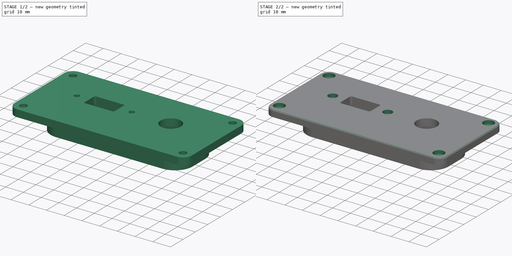
[diagram: build sequence overview — one tinted view per stage of 2, left to right]
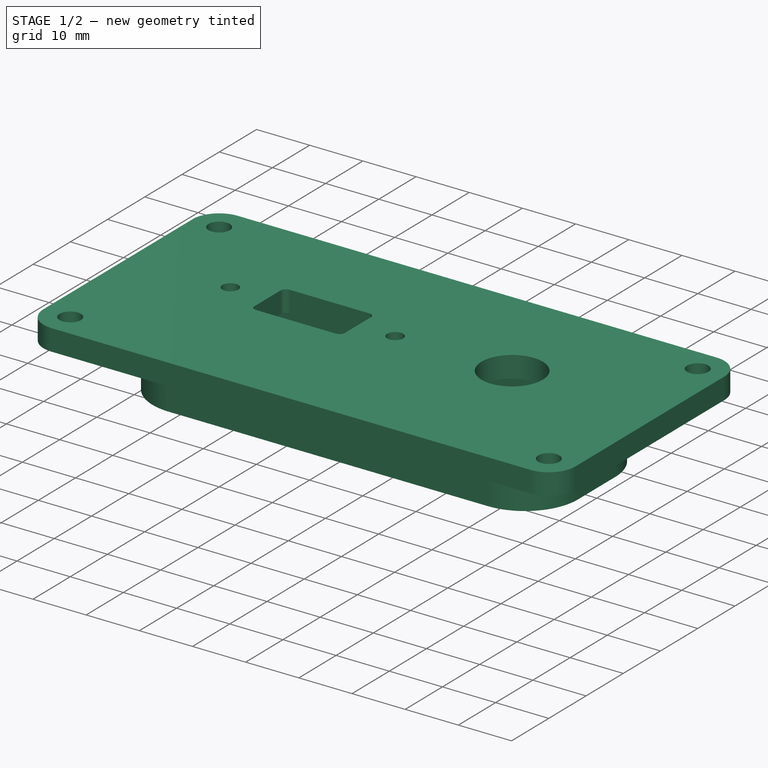
[diagram: stage 1 of 2 — iso view after this stage's code; geometry added in this stage tinted green]
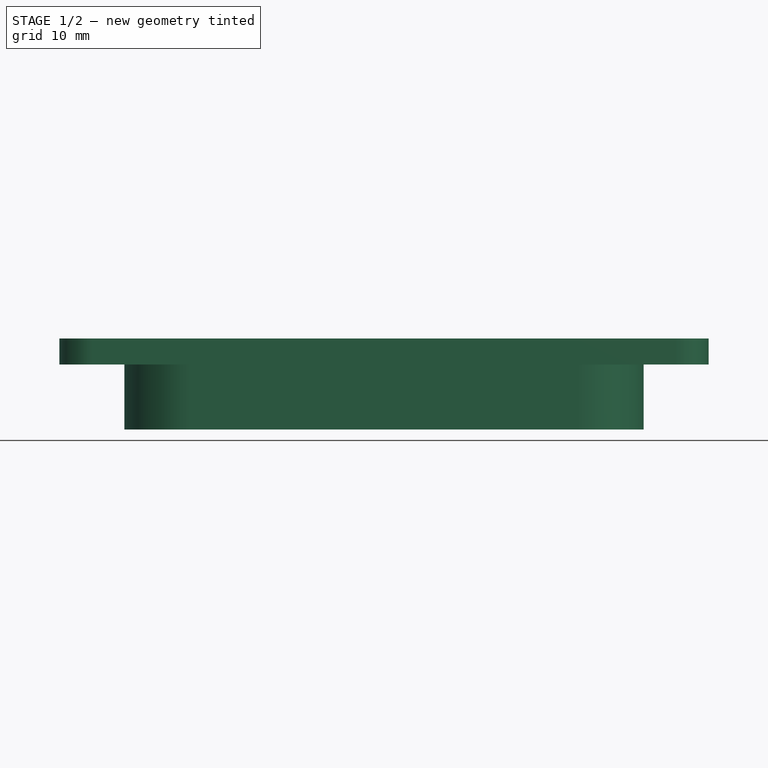
[diagram: stage 1 of 2 — front view after this stage's code; geometry added in this stage tinted green]
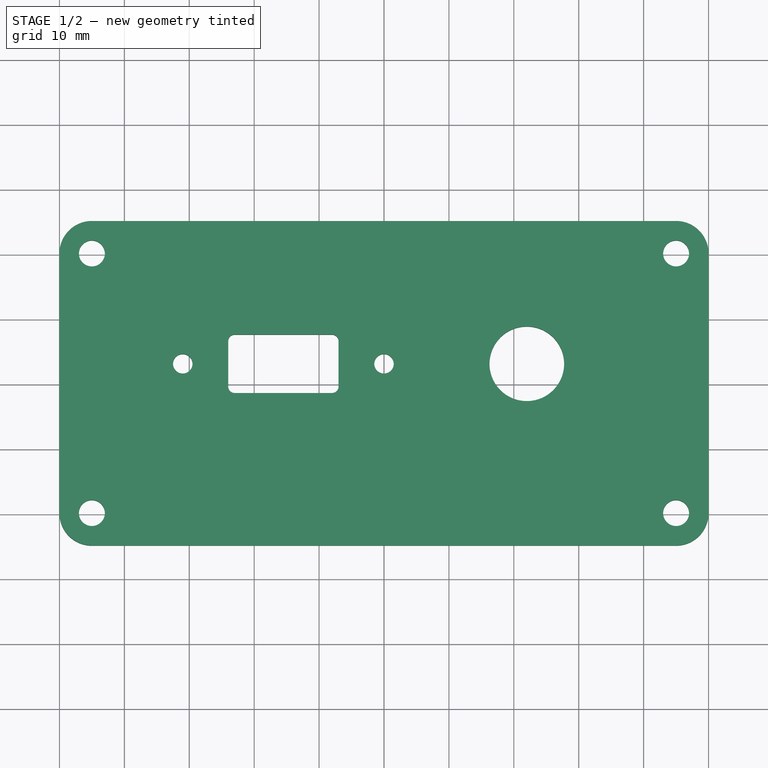
[diagram: stage 1 of 2 — top view after this stage's code; geometry added in this stage tinted green]
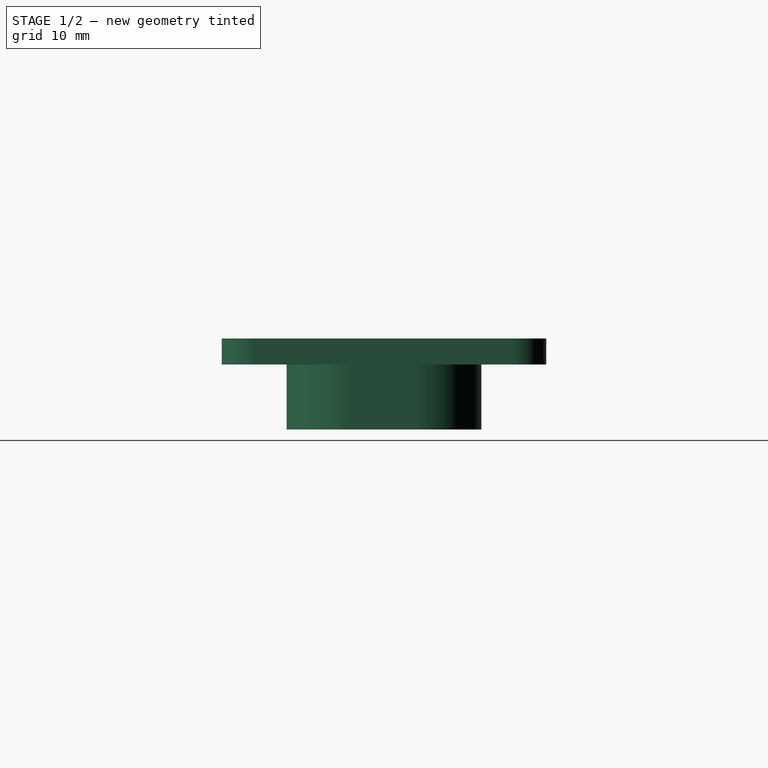
[diagram: stage 1 of 2 — right view after this stage's code; geometry added in this stage tinted green]
FCSTD DOCUMENT  (FreeCAD 0.21R33694 (Git))
Label: plaque-fixation-usb-pedalier-jack-pedale-expression
License: Creative Commons Attribution 3.0
LicenseURL: http://en.wikipedia.org/wiki/Public_domain
objects: Sketcher::SketchObject×3, PartDesign::Pad×2, PartDesign::Pocket×1, PartDesign::Fillet×1, PartDesign::Body×1
note: 12 computed .brp shape members not serialized (recipe doc carries the construction recipe); baked Part::Feature solids carry a one-line shape summary decoded from their .brp

FEATURE [Sketcher::SketchObject] Sketch  label="plaque-et-connecteurs"
  FullyConstrained = true
  MapMode = 5
  Support = -> [XY_Plane]
  sketch-geometry (29):
    g0: ArcOfCircle CenterX=-45 CenterY=20 CenterZ=0 NormalX=0 NormalY=0 NormalZ=1 AngleXU=0 Radius=5 StartAngle=1.5708 EndAngle=3.14159
    g1: LineSegment StartX=-45 StartY=25 StartZ=0 EndX=45 EndY=25 EndZ=0
    g2: ArcOfCircle CenterX=45 CenterY=20 CenterZ=0 NormalX=0 NormalY=0 NormalZ=1 AngleXU=0 Radius=5 StartAngle=0 EndAngle=1.5708
    g3: LineSegment StartX=50 StartY=20 StartZ=0 EndX=50 EndY=-20 EndZ=0
    g4: ArcOfCircle CenterX=45 CenterY=-20 CenterZ=0 NormalX=0 NormalY=0 NormalZ=1 AngleXU=0 Radius=5 StartAngle=4.71239 EndAngle=6.28319
    g5: LineSegment StartX=45 StartY=-25 StartZ=0 EndX=-45 EndY=-25 EndZ=0
    g6: ArcOfCircle CenterX=-45 CenterY=-20 CenterZ=0 NormalX=0 NormalY=0 NormalZ=1 AngleXU=0 Radius=5 StartAngle=3.14159 EndAngle=4.71239
    g7: LineSegment StartX=-50 StartY=-20 StartZ=0 EndX=-50 EndY=20 EndZ=0
    g8: GeomPoint X=-50 Y=25 Z=0
    g9: GeomPoint X=50 Y=-25 Z=0
    g10: Circle CenterX=-45 CenterY=20 CenterZ=0 NormalX=0 NormalY=0 NormalZ=1 AngleXU=0 Radius=2
    g11: Circle CenterX=45 CenterY=20 CenterZ=0 NormalX=0 NormalY=0 NormalZ=1 AngleXU=0 Radius=2
    g12: Circle CenterX=-45 CenterY=-20 CenterZ=0 NormalX=0 NormalY=0 NormalZ=1 AngleXU=0 Radius=2
    g13: Circle CenterX=45 CenterY=-20 CenterZ=0 NormalX=0 NormalY=0 NormalZ=1 AngleXU=0 Radius=2
    g14: ArcOfCircle CenterX=-23 CenterY=6.5 CenterZ=0 NormalX=0 NormalY=0 NormalZ=1 AngleXU=0 Radius=1 StartAngle=1.5708 EndAngle=3.14159
    g15: LineSegment StartX=-23 StartY=7.5 StartZ=0 EndX=-8 EndY=7.5 EndZ=0
    g16: ArcOfCircle CenterX=-8 CenterY=6.5 CenterZ=0 NormalX=0 NormalY=0 NormalZ=1 AngleXU=0 Radius=1 StartAngle=0 EndAngle=1.5708
    g17: LineSegment StartX=-7 StartY=6.5 StartZ=0 EndX=-7 EndY=-0.5 EndZ=0
    g18: ArcOfCircle CenterX=-8 CenterY=-0.5 CenterZ=0 NormalX=0 NormalY=0 NormalZ=1 AngleXU=0 Radius=1 StartAngle=4.71239 EndAngle=6.28319
    g19: LineSegment StartX=-8 StartY=-1.5 StartZ=0 EndX=-23 EndY=-1.5 EndZ=0
    g20: ArcOfCircle CenterX=-23 CenterY=-0.5 CenterZ=0 NormalX=0 NormalY=0 NormalZ=1 AngleXU=0 Radius=1 StartAngle=3.14159 EndAngle=4.71239
    g21: LineSegment StartX=-24 StartY=-0.5 StartZ=0 EndX=-24 EndY=6.5 EndZ=0
    g22: Circle CenterX=-31 CenterY=3 CenterZ=0 NormalX=0 NormalY=0 NormalZ=1 AngleXU=0 Radius=1.5
    g23: Circle CenterX=0 CenterY=3 CenterZ=0 NormalX=0 NormalY=0 NormalZ=1 AngleXU=0 Radius=1.5
    g24: Circle CenterX=22 CenterY=3 CenterZ=0 NormalX=0 NormalY=0 NormalZ=1 AngleXU=0 Radius=5.75
    g25: LineSegment StartX=-31 StartY=3 StartZ=0 EndX=0 EndY=3 EndZ=0
    g26: LineSegment StartX=-8 StartY=6.5 StartZ=0 EndX=-23 EndY=-0.5 EndZ=0
    g27: LineSegment StartX=-23 StartY=6.5 StartZ=0 EndX=-8 EndY=-0.5 EndZ=0
    g28: GeomPoint X=-15.5 Y=3 Z=0
  constraints (65):
    c: Tangent(g0,g1) = 1.5708
    c: Tangent(g1,g2) = 1.5708
    c: Tangent(g2,g3) = 1.5708
    c: Tangent(g3,g4) = 1.5708
    c: Tangent(g4,g5) = 1.5708
    c: Tangent(g5,g6) = 1.5708
    c: Tangent(g6,g7) = 1.5708
    c: Tangent(g7,g0) = 1.5708
    c: Horizontal(g5)
    c: Vertical(g3)
    c: Vertical(g7)
    c: Equal(g0,g2)
    c: Equal(g4,g6)
    c: PointOnObject(g8,g1)
    c: PointOnObject(g8,g7)
    c: PointOnObject(g9,g3)
    c: PointOnObject(g9,g5)
    c: Radius(g0) = 5
    c: Symmetric(g1,g4,g-1)
    c: DistanceY(g1) = 25
    c: Symmetric(g1,g0,g-2)
    c: DistanceX(g3) = 50
    c: Coincident(g10,g0)
    c: Coincident(g11,g2)
    c: Coincident(g13,g4)
    c: Coincident(g12,g6)
    c: Diameter(g10) = 4
    c: Equal(g11,g13)
    c: Equal(g13,g12)
    c: Equal(g12,g10)
    c: Tangent(g14,g15) = 1.5708
    c: Tangent(g15,g16) = 1.5708
    c: Tangent(g16,g17) = 1.5708
    c: Tangent(g17,g18) = 1.5708
    c: Tangent(g18,g19) = 1.5708
    c: Tangent(g19,g20) = 1.5708
    c: Tangent(g20,g21) = 1.5708
    c: Tangent(g21,g14) = 1.5708
    c: Horizontal(g15)
    c: Horizontal(g19)
    c: Vertical(g17)
    c: Vertical(g21)
    c: DistanceX(g20,g17) = 17
    c: Diameter(g22) = 3
    c: Equal(g23,g22)
    c: Diameter(g24) = 11.5
    c: DistanceX(g24) = 22
    c: DistanceY(g24) = 3
    c: DistanceY(g19,g14) = 9
    c: Radius(g14) = 1
    c: Equal(g16,g18)
    c: Equal(g18,g20)
    c: Equal(g20,g14)
    c: Horizontal(g23,g24)
    c: PointOnObject(g23,g-2)
    c: Coincident(g25,g22)
    c: Coincident(g25,g23)
    c: Symmetric(g15,g18,g25)
    c: DistanceX(g22,g23) = 31
    c: Coincident(g26,g16)
    c: Coincident(g26,g20)
    c: Coincident(g27,g14)
    c: Coincident(g27,g18)
    c: PointOnObject(g28,g27)
    c: Symmetric(g22,g23,g28)
FEATURE [PartDesign::Pad] Pad  label="plaque-et-connecteurs001"
  Direction = (0,0,1)
  Length = 4
  Length2 = 10
  Profile = -> Sketch
  ReferenceAxis = -> Sketch [N_Axis]
  Reversed = true
  Type = 0
FEATURE [Sketcher::SketchObject] Sketch001  label="raidisseur-et-maintien"
  FullyConstrained = true
  MapMode = 5
  Placement = pos=(0,0,-4) rot=(1,0,0;3.14159rad)
  Support = -> [Pad]
  sketch-geometry (20):
    g0: ArcOfCircle CenterX=-30 CenterY=5 CenterZ=0 NormalX=0 NormalY=0 NormalZ=1 AngleXU=0 Radius=10 StartAngle=1.5708 EndAngle=3.14159
    g1: LineSegment StartX=-30 StartY=15 StartZ=0 EndX=30 EndY=15 EndZ=0
    g2: ArcOfCircle CenterX=30 CenterY=5 CenterZ=0 NormalX=0 NormalY=0 NormalZ=1 AngleXU=0 Radius=10 StartAngle=1e-16 EndAngle=1.5708
    g3: LineSegment StartX=40 StartY=5 StartZ=0 EndX=40 EndY=-5 EndZ=0
    g4: ArcOfCircle CenterX=30 CenterY=-5 CenterZ=0 NormalX=0 NormalY=0 NormalZ=1 AngleXU=0 Radius=10 StartAngle=4.71239 EndAngle=6.28319
    g5: LineSegment StartX=30 StartY=-15 StartZ=0 EndX=-30 EndY=-15 EndZ=0
    g6: ArcOfCircle CenterX=-30 CenterY=-5 CenterZ=0 NormalX=0 NormalY=0 NormalZ=1 AngleXU=0 Radius=10 StartAngle=3.14159 EndAngle=4.71239
    g7: LineSegment StartX=-40 StartY=-5 StartZ=0 EndX=-40 EndY=5 EndZ=0
    g8: GeomPoint X=-40 Y=15 Z=0
    g9: GeomPoint X=40 Y=-15 Z=0
    g10: ArcOfCircle CenterX=-30 CenterY=5 CenterZ=0 NormalX=0 NormalY=0 NormalZ=1 AngleXU=0 Radius=8 StartAngle=1.5708 EndAngle=3.14159
    g11: LineSegment StartX=-30 StartY=13 StartZ=0 EndX=30 EndY=13 EndZ=0
    g12: ArcOfCircle CenterX=30 CenterY=5 CenterZ=0 NormalX=0 NormalY=0 NormalZ=1 AngleXU=0 Radius=8 StartAngle=1e-16 EndAngle=1.5708
    g13: LineSegment StartX=38 StartY=5 StartZ=0 EndX=38 EndY=-5 EndZ=0
    g14: ArcOfCircle CenterX=30 CenterY=-5 CenterZ=0 NormalX=0 NormalY=0 NormalZ=1 AngleXU=0 Radius=8 StartAngle=4.71239 EndAngle=6.28319
    g15: LineSegment StartX=30 StartY=-13 StartZ=0 EndX=-30 EndY=-13 EndZ=0
    g16: ArcOfCircle CenterX=-30 CenterY=-5 CenterZ=0 NormalX=0 NormalY=0 NormalZ=1 AngleXU=0 Radius=8 StartAngle=3.14159 EndAngle=4.71239
    g17: LineSegment StartX=-38 StartY=-5 StartZ=0 EndX=-38 EndY=5 EndZ=0
    g18: GeomPoint X=-38 Y=13 Z=0
    g19: GeomPoint X=38 Y=-13 Z=0
  constraints (44):
    c: Tangent(g0,g1) = 1.5708
    c: Tangent(g1,g2) = 1.5708
    c: Tangent(g2,g3) = 1.5708
    c: Tangent(g3,g4) = 1.5708
    c: Tangent(g4,g5) = 1.5708
    c: Tangent(g5,g6) = 1.5708
    c: Tangent(g6,g7) = 1.5708
    c: Tangent(g7,g0) = 1.5708
    c: Horizontal(g5)
    c: Vertical(g3)
    c: Vertical(g7)
    c: Equal(g0,g2)
    c: Equal(g2,g4)
    c: PointOnObject(g8,g1)
    c: PointOnObject(g8,g7)
    c: PointOnObject(g9,g3)
    c: PointOnObject(g9,g5)
    c: DistanceX(g0,g2) = 80
    c: DistanceY(g4,g1) = 30
    c: Radius(g0) = 10
    c: Symmetric(g0,g1,g-2)
    c: Symmetric(g0,g5,g-1)
    c: Tangent(g10,g11) = 1.5708
    c: Tangent(g11,g12) = 1.5708
    c: Tangent(g12,g13) = 1.5708
    c: Tangent(g13,g14) = 1.5708
    c: Tangent(g14,g15) = 1.5708
    c: Tangent(g15,g16) = 1.5708
    c: Tangent(g16,g17) = 1.5708
    c: Tangent(g17,g10) = 1.5708
    c: Horizontal(g15)
    c: Vertical(g13)
    c: Vertical(g17)
    c: Equal(g10,g12)
    c: Equal(g14,g16)
    c: PointOnObject(g18,g11)
    c: PointOnObject(g18,g17)
    c: PointOnObject(g19,g13)
    c: PointOnObject(g19,g15)
    c: DistanceX(g0,g10) = 2
    c: Symmetric(g10,g11,g-2)
    c: DistanceY(g4,g14) = 2
    c: Symmetric(g14,g11,g-1)
    c: Radius(g12) = 8
FEATURE [PartDesign::Pad] Pad001  label="raidisseur-et-maintien001"
  BaseFeature = -> Pad
  Direction = (0,0,-1)
  Length = 10
  Length2 = 10
  Profile = -> Sketch001
  ReferenceAxis = -> Sketch001 [N_Axis]
  Type = 0
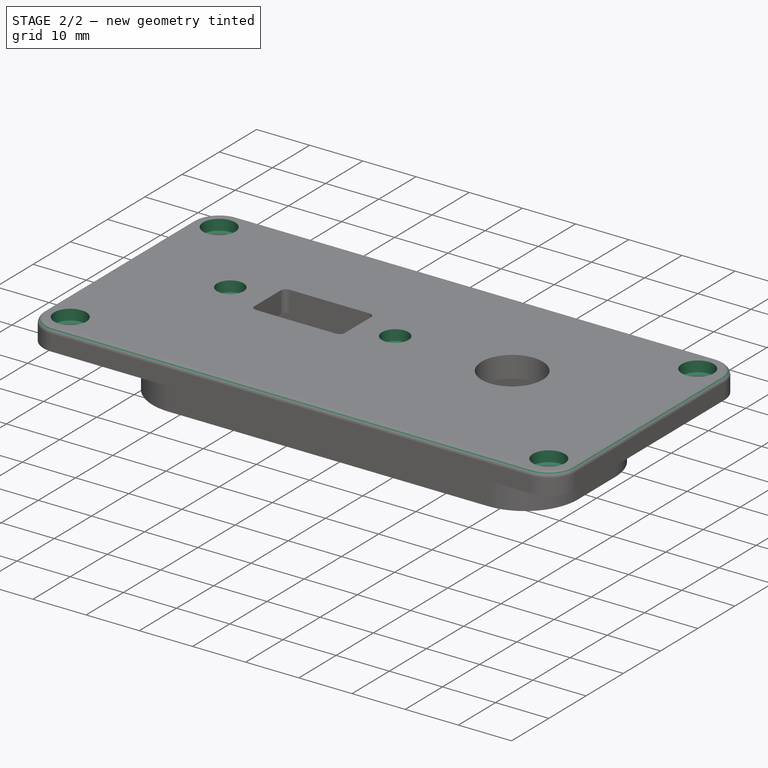
[diagram: stage 2 of 2 — iso view after this stage's code; geometry added in this stage tinted green]
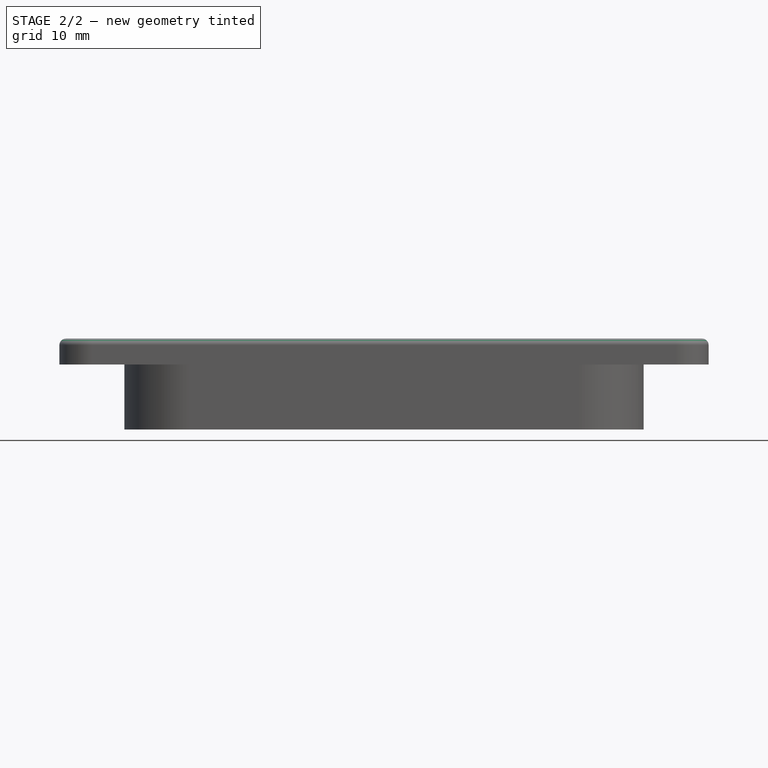
[diagram: stage 2 of 2 — front view after this stage's code; geometry added in this stage tinted green]
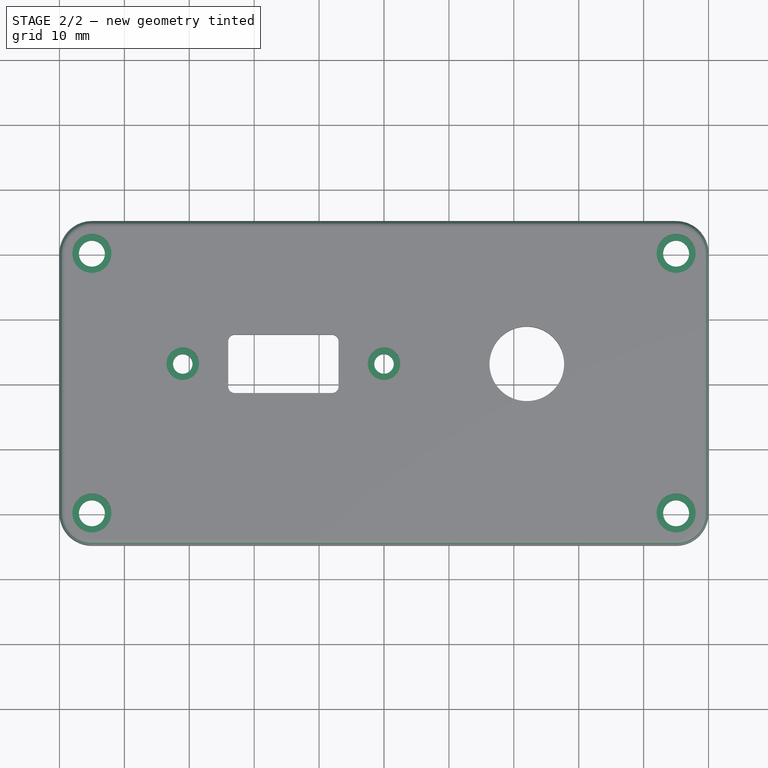
[diagram: stage 2 of 2 — top view after this stage's code; geometry added in this stage tinted green]
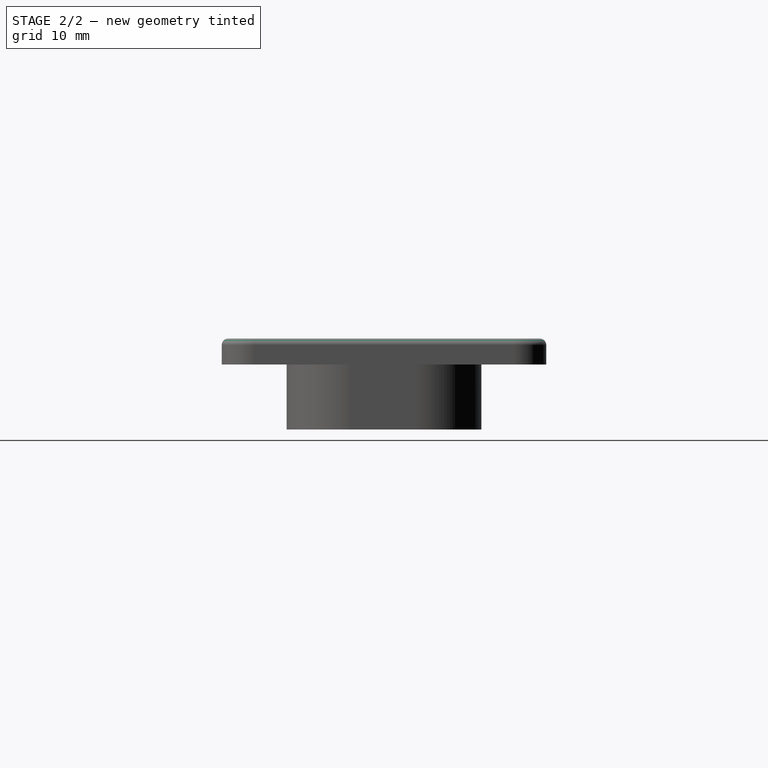
[diagram: stage 2 of 2 — right view after this stage's code; geometry added in this stage tinted green]
FEATURE [Sketcher::SketchObject] Sketch002  label="appuis-vis"
  ExternalGeometry = -> [Pad001]
  FullyConstrained = true
  MapMode = 5
  Support = -> [Pad001]
  sketch-geometry (6):
    g0: Circle CenterX=-45 CenterY=20 CenterZ=0 NormalX=0 NormalY=0 NormalZ=1 AngleXU=0 Radius=3
    g1: Circle CenterX=45 CenterY=20 CenterZ=0 NormalX=0 NormalY=0 NormalZ=1 AngleXU=0 Radius=3
    g2: Circle CenterX=45 CenterY=-20 CenterZ=0 NormalX=0 NormalY=0 NormalZ=1 AngleXU=0 Radius=3
    g3: Circle CenterX=-45 CenterY=-20 CenterZ=0 NormalX=0 NormalY=0 NormalZ=1 AngleXU=0 Radius=3
    g4: Circle CenterX=-31 CenterY=3 CenterZ=0 NormalX=0 NormalY=0 NormalZ=1 AngleXU=0 Radius=2.5
    g5: Circle CenterX=0 CenterY=3 CenterZ=0 NormalX=0 NormalY=0 NormalZ=1 AngleXU=0 Radius=2.5
  constraints (12):
    c: Coincident(g0,g-3)
    c: Coincident(g1,g-4)
    c: Coincident(g2,g-5)
    c: Coincident(g3,g-6)
    c: Coincident(g4,g-7)
    c: Coincident(g5,g-8)
    c: Diameter(g0) = 6
    c: Equal(g1,g2)
    c: Equal(g2,g3)
    c: Equal(g3,g0)
    c: Diameter(g4) = 5
    c: Equal(g5,g4)
FEATURE [PartDesign::Pocket] Pocket  label="appuis-vis001"
  BaseFeature = -> Pad001
  Direction = (0,0,-1)
  Length = 2
  Length2 = 5
  Profile = -> Sketch002
  ReferenceAxis = -> Sketch002 [N_Axis]
  Type = 0
FEATURE [PartDesign::Fillet] Fillet  label="arrondi-peripherique"
  Base = -> Pocket [Edge14]
  BaseFeature = -> Pocket
  Radius = 1
  SupportTransform = false
  UseAllEdges = false
FEATURE [PartDesign::Body] Body
  Group = -> [Sketch,Pad,Sketch001,Pad001,Sketch002,Pocket,Fillet]
  Origin = -> Origin
  Tip = -> Fillet
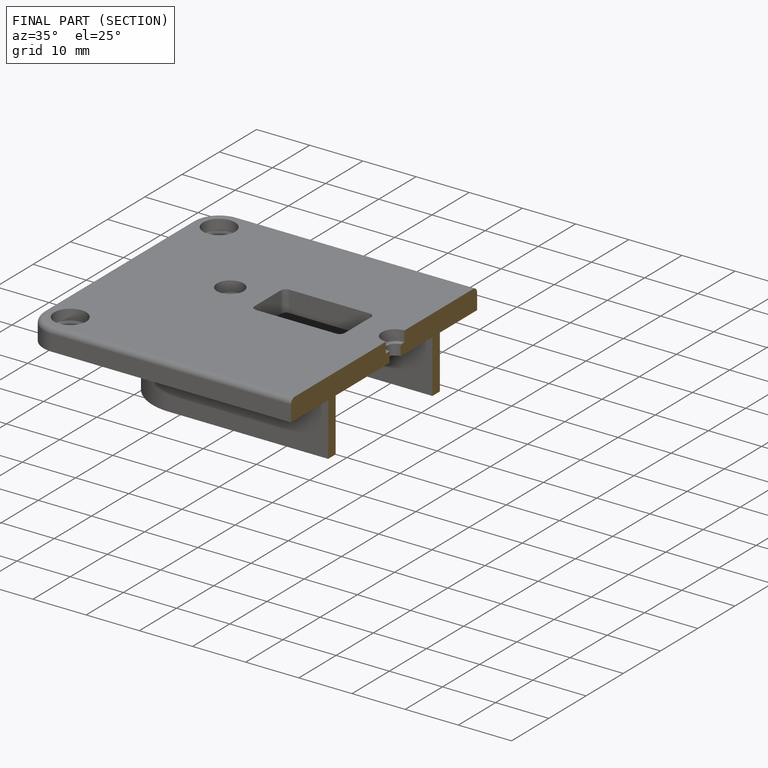
[diagram: finished part — half-section view (interior)]
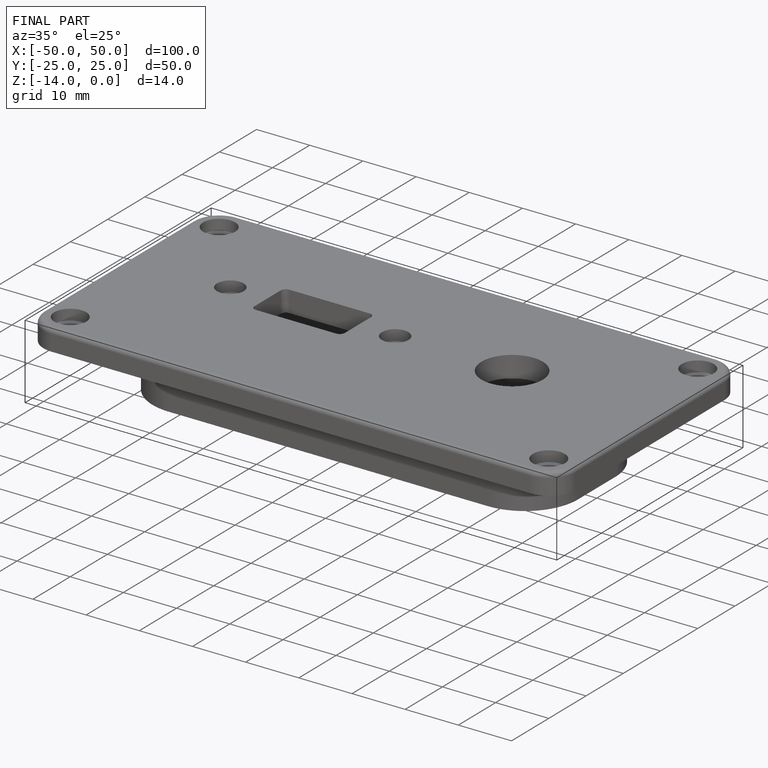
[diagram: finished part — iso view with bounding-box wireframe]
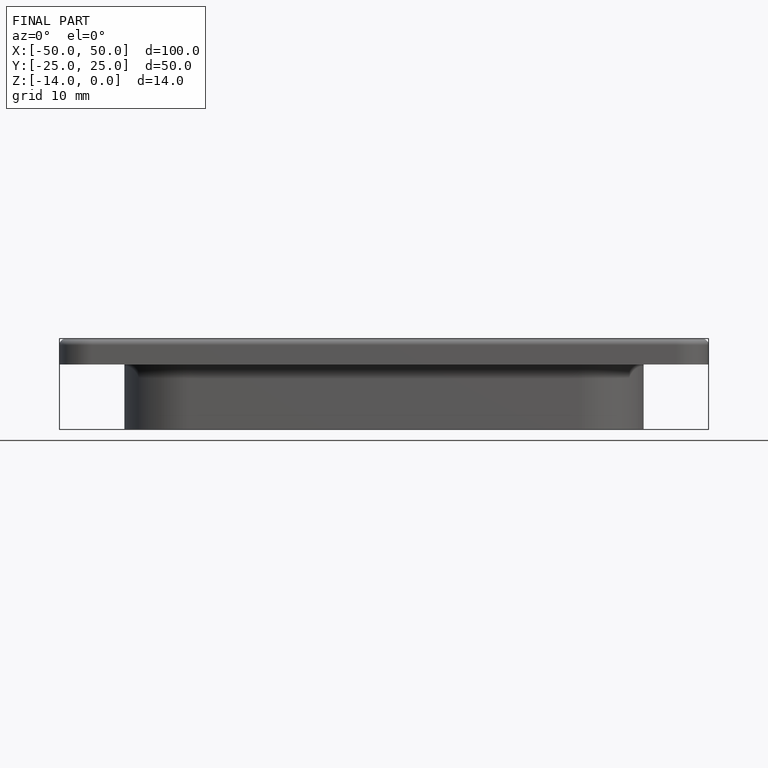
[diagram: finished part — front view with bounding-box wireframe]
